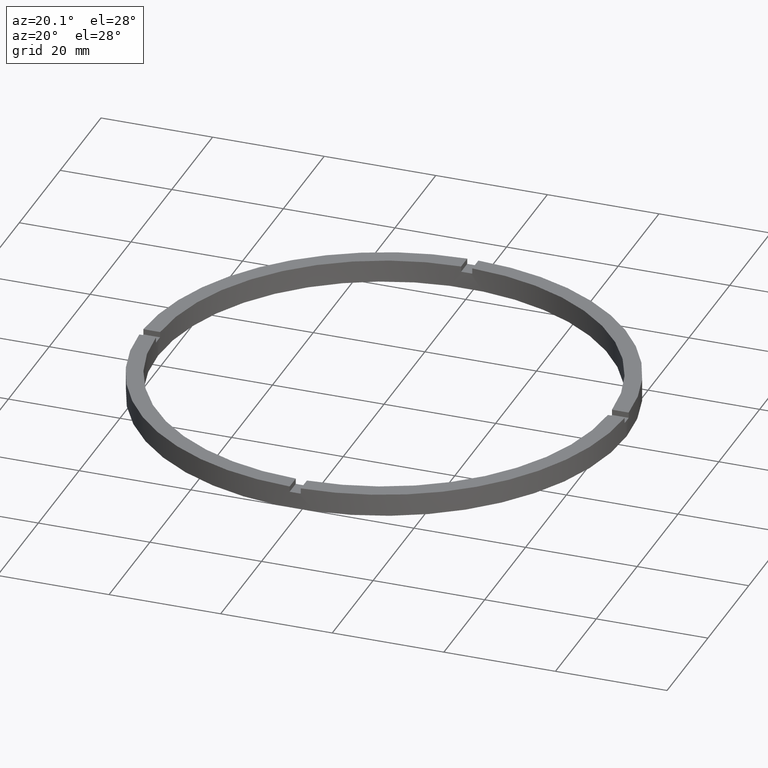
[diagram: clean part render]
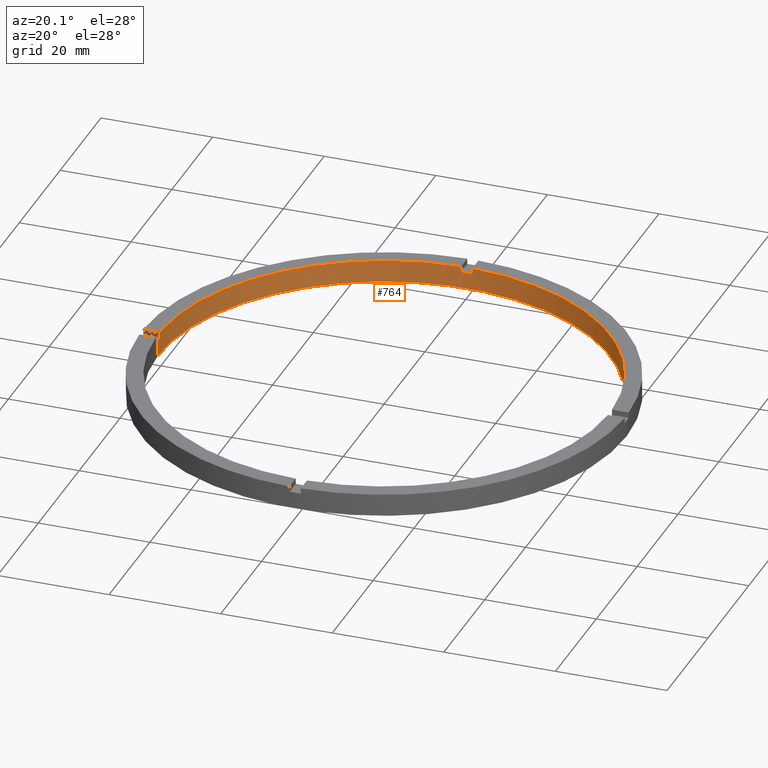
[diagram: same view with one face highlighted and labeled with its STEP entity id]
A machine part, auxiliary view. The second image highlights one B-rep face of the part: STEP entity #764.
In plain terms, the highlighted cylindrical surface (partial cylindrical patch) has radius 40.5 mm, axis along (-0, -0, -1).
Its self-contained STEP definition (entity closure, byte-faithful):
#3 = VERTEX_POINT ( 'NONE', #581 ) ;
#14 = VECTOR ( 'NONE', #492, 1000.000000000000000 ) ;
#15 = EDGE_CURVE ( 'NONE', #661, #689, #206, .T. ) ;
#20 = VECTOR ( 'NONE', #368, 1000.000000000000000 ) ;
#36 = CIRCLE ( 'NONE', #268, 40.50000000000000000 ) ;
#45 = DIRECTION ( 'NONE',  ( 1.000000000000000000, 0.000000000000000000, 0.000000000000000000 ) ) ;
#60 = EDGE_CURVE ( 'NONE', #62, #340, #225, .T. ) ;
#62 = VERTEX_POINT ( 'NONE', #165 ) ;
#67 = LINE ( 'NONE', #185, #319 ) ;
#72 = EDGE_CURVE ( 'NONE', #157, #3, #228, .T. ) ;
#84 = VERTEX_POINT ( 'NONE', #111 ) ;
#96 = VERTEX_POINT ( 'NONE', #153 ) ;
#111 = CARTESIAN_POINT ( 'NONE',  ( -1.000000000000025979, 40.48765243873741326, 4.000000000000000000 ) ) ;
#118 = EDGE_CURVE ( 'NONE', #585, #96, #296, .T. ) ;
#124 = DIRECTION ( 'NONE',  ( 1.000000000000000000, 0.000000000000000000, 0.000000000000000000 ) ) ;
#128 = CARTESIAN_POINT ( 'NONE',  ( 0.9999999999999740208, 40.48765243873742037, 4.000000000000000000 ) ) ;
#131 = DIRECTION ( 'NONE',  ( -0.000000000000000000, -0.000000000000000000, -1.000000000000000000 ) ) ;
#133 = EDGE_CURVE ( 'NONE', #84, #340, #564, .T. ) ;
#137 = AXIS2_PLACEMENT_3D ( 'NONE', #411, #471, #628 ) ;
#139 = CARTESIAN_POINT ( 'NONE',  ( -40.48765243873742037, 0.9999999999999711342, 4.000000000000000000 ) ) ;
#153 = CARTESIAN_POINT ( 'NONE',  ( 40.50000000000000000, 4.959819536546780600E-15, 0.000000000000000000 ) ) ;
#157 = VERTEX_POINT ( 'NONE', #776 ) ;
#158 = ORIENTED_EDGE ( 'NONE', *, *, #670, .T. ) ;
#165 = CARTESIAN_POINT ( 'NONE',  ( 0.9999999999999740208, 40.48765243873742037, 3.000000000000000000 ) ) ;
#171 = ORIENTED_EDGE ( 'NONE', *, *, #662, .F. ) ;
#180 = CYLINDRICAL_SURFACE ( 'NONE', #215, 40.50000000000000000 ) ;
#185 = CARTESIAN_POINT ( 'NONE',  ( -40.50000000000000000, 0.000000000000000000, 4.000000000000000000 ) ) ;
#191 = EDGE_CURVE ( 'NONE', #84, #689, #560, .T. ) ;
#193 = VERTEX_POINT ( 'NONE', #479 ) ;
#200 = CARTESIAN_POINT ( 'NONE',  ( -40.48765243873742037, 0.9999999999999711342, 4.000000000000000000 ) ) ;
#206 = LINE ( 'NONE', #139, #483 ) ;
#213 = EDGE_CURVE ( 'NONE', #585, #3, #36, .T. ) ;
#215 = AXIS2_PLACEMENT_3D ( 'NONE', #517, #748, #678 ) ;
#218 = ORIENTED_EDGE ( 'NONE', *, *, #72, .F. ) ;
#219 = CARTESIAN_POINT ( 'NONE',  ( 40.50000000000000000, 4.959819536546780600E-15, 4.000000000000000000 ) ) ;
#223 = CARTESIAN_POINT ( 'NONE',  ( 40.50000000000000000, 4.959819536546780600E-15, 3.000000000000000000 ) ) ;
#225 = CIRCLE ( 'NONE', #309, 40.50000000000000000 ) ;
#228 = LINE ( 'NONE', #672, #485 ) ;
#243 = EDGE_CURVE ( 'NONE', #62, #699, #542, .T. ) ;
#247 = DIRECTION ( 'NONE',  ( 0.000000000000000000, -0.000000000000000000, 1.000000000000000000 ) ) ;
#264 = ORIENTED_EDGE ( 'NONE', *, *, #191, .T. ) ;
#266 = ORIENTED_EDGE ( 'NONE', *, *, #15, .F. ) ;
#268 = AXIS2_PLACEMENT_3D ( 'NONE', #623, #659, #304 ) ;
#274 = ORIENTED_EDGE ( 'NONE', *, *, #213, .T. ) ;
#275 = DIRECTION ( 'NONE',  ( 0.000000000000000000, 0.000000000000000000, 1.000000000000000000 ) ) ;
#278 = EDGE_CURVE ( 'NONE', #777, #193, #67, .T. ) ;
#296 = LINE ( 'NONE', #219, #20 ) ;
#303 = CIRCLE ( 'NONE', #351, 40.50000000000000000 ) ;
#304 = DIRECTION ( 'NONE',  ( 1.000000000000000000, 0.000000000000000000, 0.000000000000000000 ) ) ;
#309 = AXIS2_PLACEMENT_3D ( 'NONE', #716, #247, #124 ) ;
#319 = VECTOR ( 'NONE', #131, 1000.000000000000000 ) ;
#321 = ORIENTED_EDGE ( 'NONE', *, *, #393, .T. ) ;
#326 = ORIENTED_EDGE ( 'NONE', *, *, #60, .T. ) ;
#340 = VERTEX_POINT ( 'NONE', #394 ) ;
#351 = AXIS2_PLACEMENT_3D ( 'NONE', #541, #618, #460 ) ;
#352 = DIRECTION ( 'NONE',  ( 1.000000000000000000, 0.000000000000000000, 0.000000000000000000 ) ) ;
#368 = DIRECTION ( 'NONE',  ( -0.000000000000000000, -0.000000000000000000, -1.000000000000000000 ) ) ;
#387 = DIRECTION ( 'NONE',  ( -0.000000000000000000, -0.000000000000000000, -1.000000000000000000 ) ) ;
#393 = EDGE_CURVE ( 'NONE', #661, #777, #303, .T. ) ;
#394 = CARTESIAN_POINT ( 'NONE',  ( -1.000000000000025979, 40.48765243873741326, 3.000000000000000000 ) ) ;
#411 = CARTESIAN_POINT ( 'NONE',  ( 0.000000000000000000, 0.000000000000000000, 4.000000000000000000 ) ) ;
#417 = AXIS2_PLACEMENT_3D ( 'NONE', #757, #680, #45 ) ;
#421 = ORIENTED_EDGE ( 'NONE', *, *, #278, .T. ) ;
#430 = DIRECTION ( 'NONE',  ( 0.000000000000000000, 0.000000000000000000, 1.000000000000000000 ) ) ;
#437 = FACE_OUTER_BOUND ( 'NONE', #496, .T. ) ;
#449 = CIRCLE ( 'NONE', #494, 40.50000000000000000 ) ;
#460 = DIRECTION ( 'NONE',  ( 1.000000000000000000, 0.000000000000000000, 0.000000000000000000 ) ) ;
#463 = ORIENTED_EDGE ( 'NONE', *, *, #243, .F. ) ;
#471 = DIRECTION ( 'NONE',  ( 0.000000000000000000, 0.000000000000000000, 1.000000000000000000 ) ) ;
#479 = CARTESIAN_POINT ( 'NONE',  ( -40.50000000000000000, 0.000000000000000000, 0.000000000000000000 ) ) ;
#483 = VECTOR ( 'NONE', #430, 1000.000000000000000 ) ;
#485 = VECTOR ( 'NONE', #387, 1000.000000000000000 ) ;
#492 = DIRECTION ( 'NONE',  ( 0.000000000000000000, 0.000000000000000000, 1.000000000000000000 ) ) ;
#494 = AXIS2_PLACEMENT_3D ( 'NONE', #506, #275, #352 ) ;
#496 = EDGE_LOOP ( 'NONE', ( #715, #274, #218, #158, #463, #326, #527, #264, #266, #321, #421, #171 ) ) ;
#506 = CARTESIAN_POINT ( 'NONE',  ( 0.000000000000000000, 0.000000000000000000, 4.000000000000000000 ) ) ;
#517 = CARTESIAN_POINT ( 'NONE',  ( 0.000000000000000000, 0.000000000000000000, 4.000000000000000000 ) ) ;
#527 = ORIENTED_EDGE ( 'NONE', *, *, #133, .F. ) ;
#541 = CARTESIAN_POINT ( 'NONE',  ( 0.000000000000000000, 0.000000000000000000, 3.000000000000000000 ) ) ;
#542 = LINE ( 'NONE', #128, #14 ) ;
#543 = VECTOR ( 'NONE', #639, 1000.000000000000000 ) ;
#560 = CIRCLE ( 'NONE', #137, 40.50000000000000000 ) ;
#564 = LINE ( 'NONE', #752, #543 ) ;
#576 = CARTESIAN_POINT ( 'NONE',  ( -40.48765243873742037, 0.9999999999999711342, 3.000000000000000000 ) ) ;
#581 = CARTESIAN_POINT ( 'NONE',  ( 40.48765243873742037, 0.9999999999998434586, 3.000000000000000000 ) ) ;
#585 = VERTEX_POINT ( 'NONE', #223 ) ;
#602 = CARTESIAN_POINT ( 'NONE',  ( 0.9999999999999740208, 40.48765243873742037, 4.000000000000000000 ) ) ;
#618 = DIRECTION ( 'NONE',  ( 0.000000000000000000, 0.000000000000000000, 1.000000000000000000 ) ) ;
#623 = CARTESIAN_POINT ( 'NONE',  ( 0.000000000000000000, 0.000000000000000000, 3.000000000000000000 ) ) ;
#628 = DIRECTION ( 'NONE',  ( 1.000000000000000000, 0.000000000000000000, 0.000000000000000000 ) ) ;
#639 = DIRECTION ( 'NONE',  ( -0.000000000000000000, -0.000000000000000000, -1.000000000000000000 ) ) ;
#659 = DIRECTION ( 'NONE',  ( 0.000000000000000000, 0.000000000000000000, 1.000000000000000000 ) ) ;
#661 = VERTEX_POINT ( 'NONE', #576 ) ;
#662 = EDGE_CURVE ( 'NONE', #96, #193, #698, .T. ) ;
#670 = EDGE_CURVE ( 'NONE', #157, #699, #449, .T. ) ;
#672 = CARTESIAN_POINT ( 'NONE',  ( 40.48765243873742037, 0.9999999999998434586, 4.000000000000000000 ) ) ;
#678 = DIRECTION ( 'NONE',  ( -1.000000000000000000, 0.000000000000000000, 0.000000000000000000 ) ) ;
#680 = DIRECTION ( 'NONE',  ( 0.000000000000000000, 0.000000000000000000, 1.000000000000000000 ) ) ;
#689 = VERTEX_POINT ( 'NONE', #200 ) ;
#698 = CIRCLE ( 'NONE', #417, 40.50000000000000000 ) ;
#699 = VERTEX_POINT ( 'NONE', #602 ) ;
#715 = ORIENTED_EDGE ( 'NONE', *, *, #118, .F. ) ;
#716 = CARTESIAN_POINT ( 'NONE',  ( 0.000000000000000000, 0.000000000000000000, 3.000000000000000000 ) ) ;
#748 = DIRECTION ( 'NONE',  ( -0.000000000000000000, -0.000000000000000000, -1.000000000000000000 ) ) ;
#752 = CARTESIAN_POINT ( 'NONE',  ( -1.000000000000025979, 40.48765243873741326, 4.000000000000000000 ) ) ;
#757 = CARTESIAN_POINT ( 'NONE',  ( 0.000000000000000000, 0.000000000000000000, 0.000000000000000000 ) ) ;
#762 = CARTESIAN_POINT ( 'NONE',  ( -40.50000000000000000, 0.000000000000000000, 3.000000000000000000 ) ) ;
#764 = ADVANCED_FACE ( 'NONE', ( #437 ), #180, .F. ) ;
#776 = CARTESIAN_POINT ( 'NONE',  ( 40.48765243873742037, 0.9999999999998434586, 4.000000000000000000 ) ) ;
#777 = VERTEX_POINT ( 'NONE', #762 ) ;